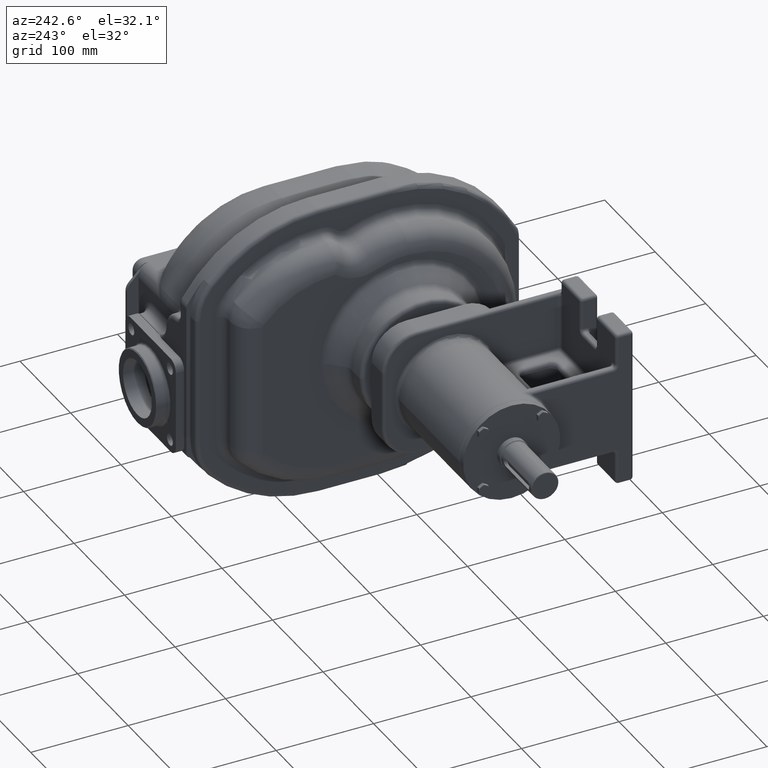
[diagram: clean part render]
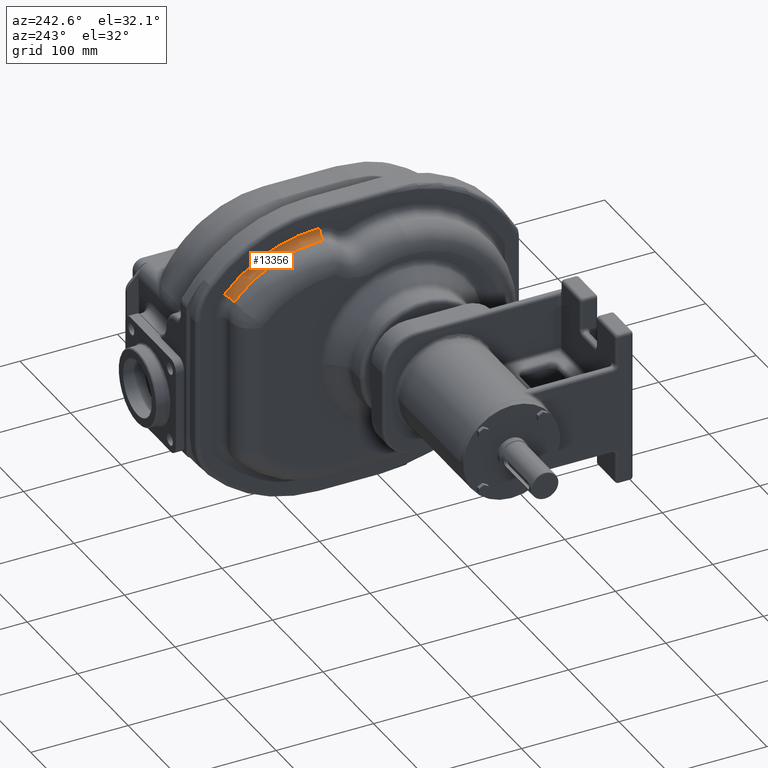
[diagram: same view with one face highlighted and labeled with its STEP entity id]
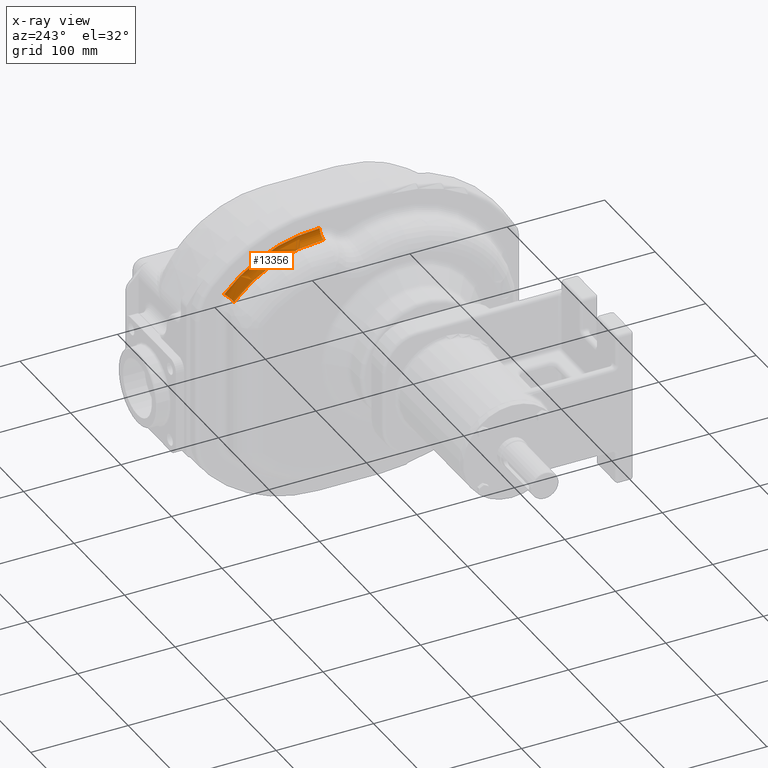
[diagram: x-ray of the same camera — body ghosted, the highlighted face saturated]
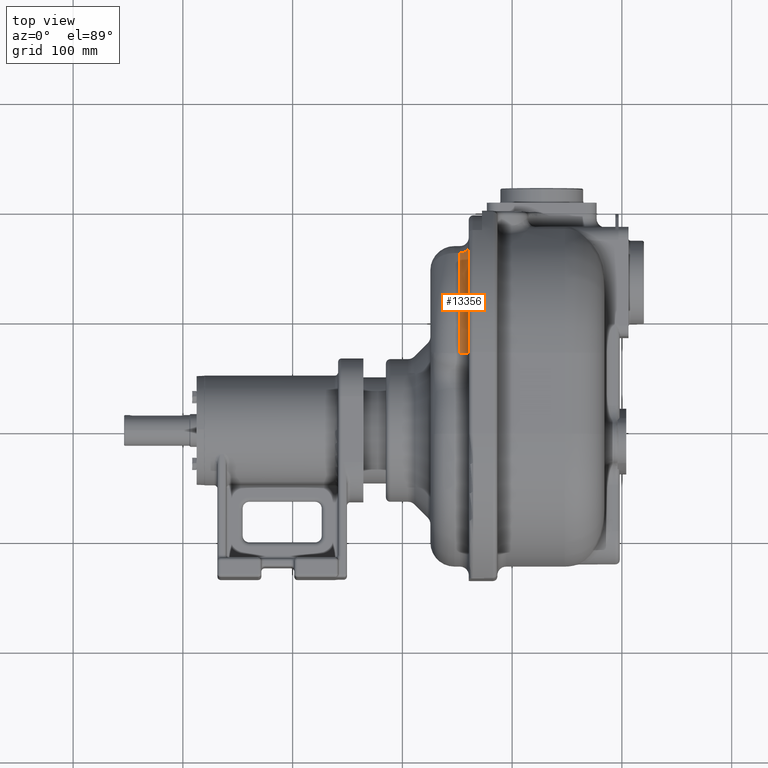
[diagram: same view with one face highlighted and labeled with its STEP entity id]
A machine part, auxiliary view. The second image highlights one B-rep face of the part: STEP entity #13356.
The next image is the same camera in x-ray: the body ghosted, the highlighted face saturated — about 0% of this face is hidden behind the body in this view.
A second angle (top view) of the same face is appended — the face is thin or edge-on in the first view.
In plain terms, the highlighted toroidal blend (fillet) surface has major radius 132 mm and minor (blend) radius 8 mm.
Its self-contained STEP definition (entity closure, byte-faithful):
#2426=CARTESIAN_POINT('',(-3.95E1,6.9E1,-1.E1));
#2427=DIRECTION('',(1.E0,0.E0,0.E0));
#2428=DIRECTION('',(0.E0,7.373737373737E-1,6.754849897899E-1));
#2429=AXIS2_PLACEMENT_3D('',#2426,#2427,#2428);
#2595=CARTESIAN_POINT('',(-4.75E1,1.663333333333E2,7.916401865227E1));
#2596=DIRECTION('',(0.E0,-6.754849897899E-1,7.373737373737E-1));
#2597=DIRECTION('',(0.E0,-7.373737373737E-1,-6.754849897899E-1));
#2598=AXIS2_PLACEMENT_3D('',#2595,#2596,#2597);
#2600=CARTESIAN_POINT('',(-4.75E1,6.9E1,-1.E1));
#2601=DIRECTION('',(1.E0,0.E0,0.E0));
#2602=DIRECTION('',(0.E0,7.373737373737E-1,6.754849897899E-1));
#2603=AXIS2_PLACEMENT_3D('',#2600,#2601,#2602);
#2632=CARTESIAN_POINT('',(-4.75E1,6.842759136081E1,1.219987588894E2));
#2633=DIRECTION('',(0.E0,-9.999905976472E-1,-4.336429084773E-3));
#2634=DIRECTION('',(0.E0,4.336429084773E-3,-9.999905976472E-1));
#2635=AXIS2_PLACEMENT_3D('',#2632,#2633,#2634);
#8680=CARTESIAN_POINT('',(-4.75E1,1.604343434343E2,7.376013873395E1));
#8681=VERTEX_POINT('',#8680);
#8682=CARTESIAN_POINT('',(-3.95E1,1.663333333333E2,7.916401865227E1));
#8683=VERTEX_POINT('',#8682);
#8684=CARTESIAN_POINT('',(-4.75E1,6.846228279349E1,1.139988341083E2));
#8685=VERTEX_POINT('',#8684);
#8686=CARTESIAN_POINT('',(-3.95E1,6.842759136081E1,1.219987588894E2));
#8687=VERTEX_POINT('',#8686);
#13343=CARTESIAN_POINT('',(-4.75E1,6.9E1,-1.E1));
#13344=DIRECTION('',(-1.E0,0.E0,0.E0));
#13345=DIRECTION('',(0.E0,7.374542739115E-1,6.753970638740E-1));
#13346=AXIS2_PLACEMENT_3D('',#13343,#13344,#13345);
#13347=TOROIDAL_SURFACE('',#13346,1.32E2,8.E0);
#13349=ORIENTED_EDGE('',*,*,#13348,.F.);
#13350=ORIENTED_EDGE('',*,*,#13338,.T.);
#13351=ORIENTED_EDGE('',*,*,#13056,.T.);
#13353=ORIENTED_EDGE('',*,*,#13352,.F.);
#13354=EDGE_LOOP('',(#13349,#13350,#13351,#13353));
#13355=FACE_OUTER_BOUND('',#13354,.F.);
#13356=ADVANCED_FACE('',(#13355),#13347,.F.);
#2430=CIRCLE('',#2429,1.32E2);
#2599=CIRCLE('',#2598,8.E0);
#2604=CIRCLE('',#2603,1.24E2);
#2636=CIRCLE('',#2635,8.E0);
#13056=EDGE_CURVE('',#8683,#8687,#2430,.T.);
#13338=EDGE_CURVE('',#8681,#8683,#2599,.T.);
#13348=EDGE_CURVE('',#8681,#8685,#2604,.T.);
#13352=EDGE_CURVE('',#8685,#8687,#2636,.T.);